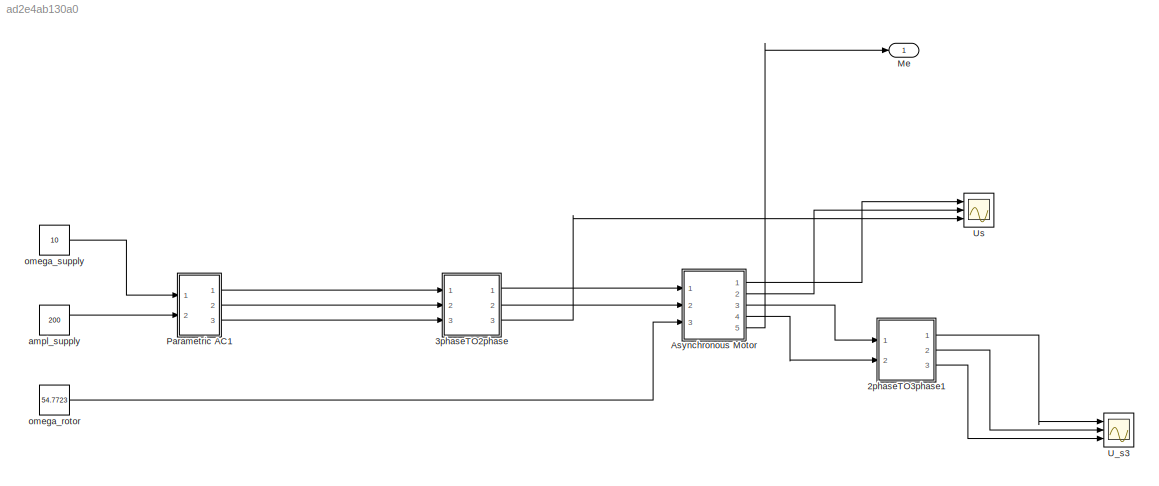
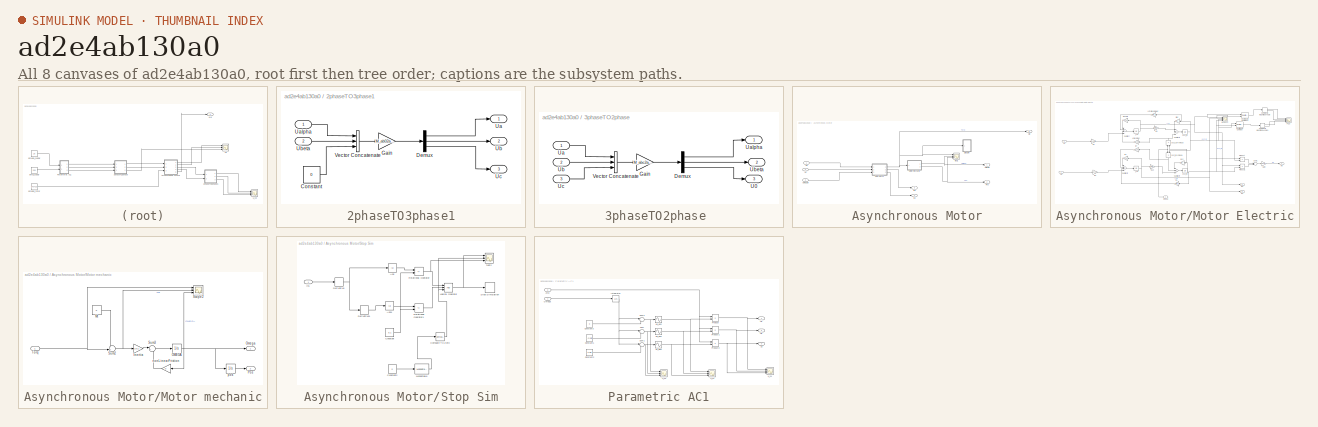
[diagram: thumbnail index - all 8 canvases of the model, root first then tree order]
MODEL slx_ad2e4ab130a0
KIND model
CONFIG AbsTol = auto
CONFIG FixedStep = 0.0005
CONFIG MaxStep = auto
CONFIG MinStep = auto
CONFIG RelTol = 1e-3
CONFIG SampleTimeConstraint = Unconstrained
CONFIG Solver = FixedStepAuto
CONFIG SolverMode = Auto
CONFIG SolverName = FixedStepAuto
CONFIG StartTime = 0.0
CONFIG StopTime = 10
BLOCK [SubSystem] 2phaseTO3phase1
  Ports = [2, 3]
  RequestExecContextInheritance = off
  Variant = off
BLOCK [Constant] 2phaseTO3phase1/Constant
  Value = 0
BLOCK [Demux] 2phaseTO3phase1/Demux
  DisplayOption = bar
  Outputs = 3
  Ports = [1, 3]
BLOCK [Gain] 2phaseTO3phase1/Gain
  Gain = M_ab02abc
  Multiplication = Matrix(K*u)
  OutDataTypeStr = Inherit: Inherit via internal rule
  ParamDataTypeStr = Inherit: Inherit via internal rule
  SaturateOnIntegerOverflow = off
BLOCK [Outport] 2phaseTO3phase1/Ua
  IconDisplay = Port number
BLOCK [Inport] 2phaseTO3phase1/Ualpha
  IconDisplay = Port number
BLOCK [Outport] 2phaseTO3phase1/Ub
  IconDisplay = Port number
  Port = 2
BLOCK [Inport] 2phaseTO3phase1/Ubeta
  IconDisplay = Port number
  Port = 2
BLOCK [Outport] 2phaseTO3phase1/Uc
  IconDisplay = Port number
  Port = 3
BLOCK [Concatenate] 2phaseTO3phase1/Vector Concatenate
  NumInputs = 3
  Ports = [3, 1]
BLOCK [SubSystem] 3phaseTO2phase 
  Ports = [3, 3]
  RequestExecContextInheritance = off
  Variant = off
BLOCK [Demux] 3phaseTO2phase /Demux
  DisplayOption = bar
  Outputs = 3
  Ports = [1, 3]
BLOCK [Gain] 3phaseTO2phase /Gain
  Gain = M_abc2ab0
  Multiplication = Matrix(K*u)
  OutDataTypeStr = Inherit: Inherit via internal rule
  ParamDataTypeStr = Inherit: Inherit via internal rule
  SaturateOnIntegerOverflow = off
BLOCK [Outport] 3phaseTO2phase /U0
  IconDisplay = Port number
  Port = 3
BLOCK [Inport] 3phaseTO2phase /Ua
  IconDisplay = Port number
BLOCK [Outport] 3phaseTO2phase /Ualpha
  IconDisplay = Port number
BLOCK [Inport] 3phaseTO2phase /Ub
  IconDisplay = Port number
  Port = 2
BLOCK [Outport] 3phaseTO2phase /Ubeta
  IconDisplay = Port number
  Port = 2
BLOCK [Inport] 3phaseTO2phase /Uc
  IconDisplay = Port number
  Port = 3
BLOCK [Concatenate] 3phaseTO2phase /Vector Concatenate
  NumInputs = 3
  Ports = [3, 1]
BLOCK [SubSystem] Asynchronous Motor
  Ports = [3, 5]
  RequestExecContextInheritance = off
  Variant = off
BLOCK [Outport] Asynchronous Motor/Isd
  IconDisplay = Port number
  Port = 3
BLOCK [Outport] Asynchronous Motor/Isq
  IconDisplay = Port number
  Port = 4
BLOCK [Outport] Asynchronous Motor/Me
  IconDisplay = Port number
  Port = 5
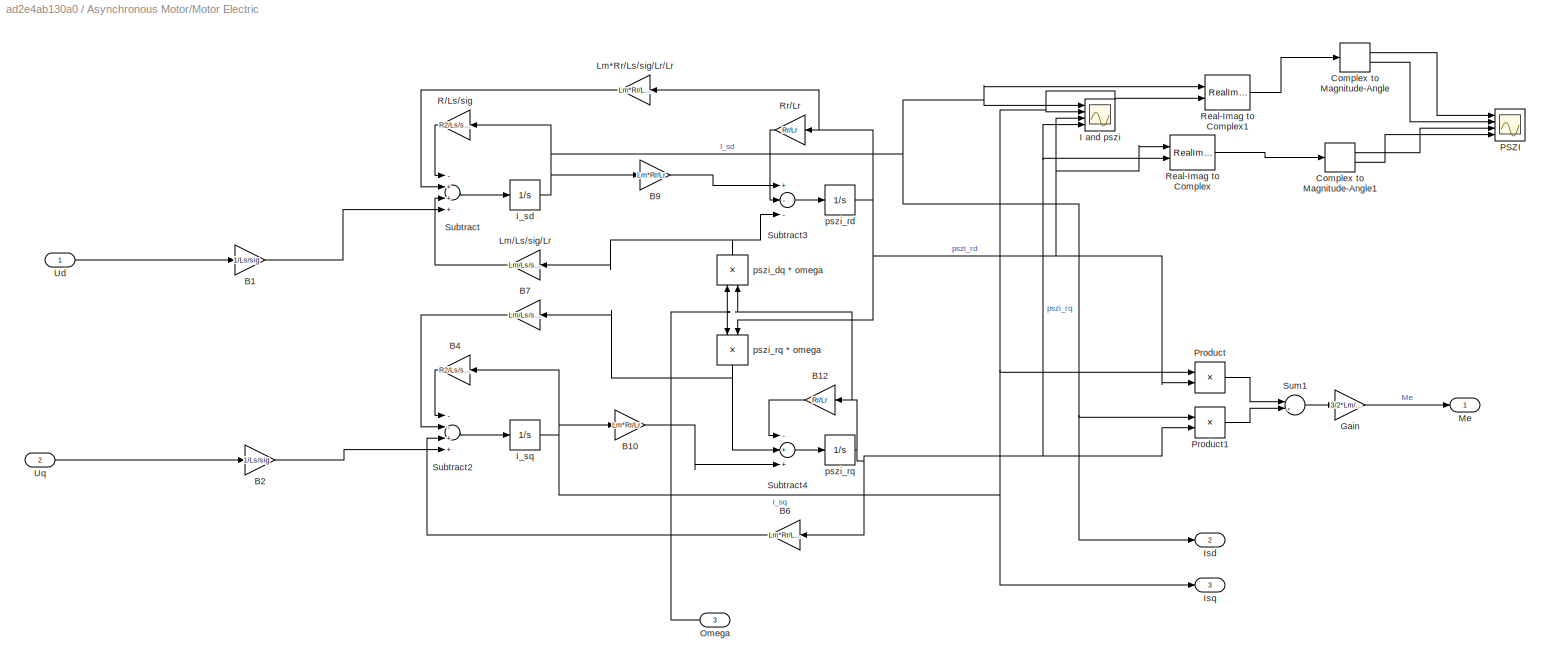
BLOCK [SubSystem] Asynchronous Motor/Motor Electric
  Ports = [3, 3]
  RequestExecContextInheritance = off
  Variant = off
BLOCK [Gain] Asynchronous Motor/Motor Electric/B1
  Gain = 1/Ls/sig
  Multiplication = Matrix(K*u)
  OutDataTypeStr = Inherit: Inherit via internal rule
  ParamDataTypeStr = Inherit: Inherit via internal rule
  SaturateOnIntegerOverflow = off
BLOCK [Gain] Asynchronous Motor/Motor Electric/B10
  Gain = Lm*Rr/Lr
  Multiplication = Matrix(K*u)
  OutDataTypeStr = Inherit: Inherit via internal rule
  ParamDataTypeStr = Inherit: Inherit via internal rule
  SaturateOnIntegerOverflow = off
BLOCK [Gain] Asynchronous Motor/Motor Electric/B12
  Gain = Rr/Lr
  Multiplication = Matrix(K*u)
  OutDataTypeStr = Inherit: Inherit via internal rule
  ParamDataTypeStr = Inherit: Inherit via internal rule
  SaturateOnIntegerOverflow = off
BLOCK [Gain] Asynchronous Motor/Motor Electric/B2
  Gain = 1/Ls/sig
  Multiplication = Matrix(K*u)
  OutDataTypeStr = Inherit: Inherit via internal rule
  ParamDataTypeStr = Inherit: Inherit via internal rule
  SaturateOnIntegerOverflow = off
BLOCK [Gain] Asynchronous Motor/Motor Electric/B4
  Gain = R2/Ls/sig
  Multiplication = Matrix(K*u)
  OutDataTypeStr = Inherit: Inherit via internal rule
  ParamDataTypeStr = Inherit: Inherit via internal rule
  SaturateOnIntegerOverflow = off
BLOCK [Gain] Asynchronous Motor/Motor Electric/B6
  Gain = Lm*Rr/Ls/sig/Lr/Lr
  Multiplication = Matrix(K*u)
  OutDataTypeStr = Inherit: Inherit via internal rule
  ParamDataTypeStr = Inherit: Inherit via internal rule
  SaturateOnIntegerOverflow = off
BLOCK [Gain] Asynchronous Motor/Motor Electric/B7
  Gain = Lm/Ls/sig/Lr
  Multiplication = Matrix(K*u)
  OutDataTypeStr = Inherit: Inherit via internal rule
  ParamDataTypeStr = Inherit: Inherit via internal rule
  SaturateOnIntegerOverflow = off
BLOCK [Gain] Asynchronous Motor/Motor Electric/B9
  Gain = Lm*Rr/Lr
  Multiplication = Matrix(K*u)
  OutDataTypeStr = Inherit: Inherit via internal rule
  ParamDataTypeStr = Inherit: Inherit via internal rule
  SaturateOnIntegerOverflow = off
BLOCK [ComplexToMagnitudeAngle] Asynchronous Motor/Motor Electric/Complex to Magnitude-Angle
  Ports = [1, 2]
BLOCK [ComplexToMagnitudeAngle] Asynchronous Motor/Motor Electric/Complex to Magnitude-Angle1
  Ports = [1, 2]
BLOCK [Gain] Asynchronous Motor/Motor Electric/Gain
  Gain = 3/2*Lm/Lr
  OutDataTypeStr = Inherit: Inherit via internal rule
  ParamDataTypeStr = Inherit: Inherit via internal rule
  SaturateOnIntegerOverflow = off
BLOCK [Scope] Asynchronous Motor/Motor Electric/I and pszi
  NumInputPorts = 4
  Ports = [4]
  ScopeSpecificationString = Simulink.scopes.TimeScopeBlockCfg('CurrentConfiguration', extmgr.ConfigurationSet(extmgr.Configuration('Core','General UI',true),extmgr.Configuration('Core','Source UI',true),extmgr.Configuration('Sources','WiredSimulink',true),extmgr.Configuration('Visuals','Time Domain',true,'SerializedDisplays',{struct('MinYLimReal','-0.35721','MaxYLimReal','0.2837','YLabelReal','','MinYLimMag','0.00000','MaxYL...<+1453ch>
BLOCK [Integrator] Asynchronous Motor/Motor Electric/I_sd
  Ports = [1, 1]
BLOCK [Integrator] Asynchronous Motor/Motor Electric/I_sq
  Ports = [1, 1]
BLOCK [Outport] Asynchronous Motor/Motor Electric/Isd
  IconDisplay = Port number
  Port = 2
BLOCK [Outport] Asynchronous Motor/Motor Electric/Isq
  IconDisplay = Port number
  Port = 3
BLOCK [Gain] Asynchronous Motor/Motor Electric/Lm*Rr//Ls//sig//Lr//Lr
  Gain = Lm*Rr/Ls/sig/Lr/Lr
  Multiplication = Matrix(K*u)
  OutDataTypeStr = Inherit: Inherit via internal rule
  ParamDataTypeStr = Inherit: Inherit via internal rule
  SaturateOnIntegerOverflow = off
BLOCK [Gain] Asynchronous Motor/Motor Electric/Lm//Ls//sig//Lr
  Gain = Lm/Ls/sig/Lr
  Multiplication = Matrix(K*u)
  OutDataTypeStr = Inherit: Inherit via internal rule
  ParamDataTypeStr = Inherit: Inherit via internal rule
  SaturateOnIntegerOverflow = off
BLOCK [Outport] Asynchronous Motor/Motor Electric/Me
  IconDisplay = Port number
BLOCK [Inport] Asynchronous Motor/Motor Electric/Omega
  IconDisplay = Port number
  Port = 3
BLOCK [Scope] Asynchronous Motor/Motor Electric/PSZI
  NumInputPorts = 4
  Ports = [4]
  ScopeSpecificationString = Simulink.scopes.TimeScopeBlockCfg('CurrentConfiguration', extmgr.ConfigurationSet(extmgr.Configuration('Core','General UI',true),extmgr.Configuration('Core','Source UI',true),extmgr.Configuration('Sources','WiredSimulink',true,'DataLoggingVariableName','ScopeData2'),extmgr.Configuration('Visuals','Time Domain',true,'SerializedDisplays',{struct('MinYLimReal','-15.09969','MaxYLimReal','104.48314','Y...<+1595ch>
BLOCK [Product] Asynchronous Motor/Motor Electric/Product
  InputSameDT = off
  OutDataTypeStr = Inherit: Inherit via internal rule
  Ports = [2, 1]
  RndMeth = Floor
  SaturateOnIntegerOverflow = off
BLOCK [Product] Asynchronous Motor/Motor Electric/Product1
  InputSameDT = off
  OutDataTypeStr = Inherit: Inherit via internal rule
  Ports = [2, 1]
  RndMeth = Floor
  SaturateOnIntegerOverflow = off
BLOCK [Gain] Asynchronous Motor/Motor Electric/R//Ls//sig
  Gain = R2/Ls/sig
  Multiplication = Matrix(K*u)
  OutDataTypeStr = Inherit: Inherit via internal rule
  ParamDataTypeStr = Inherit: Inherit via internal rule
  SaturateOnIntegerOverflow = off
BLOCK [RealImagToComplex] Asynchronous Motor/Motor Electric/Real-Imag to Complex
  Ports = [2, 1]
BLOCK [RealImagToComplex] Asynchronous Motor/Motor Electric/Real-Imag to Complex1
  Ports = [2, 1]
BLOCK [Gain] Asynchronous Motor/Motor Electric/Rr//Lr
  Gain = Rr/Lr
  Multiplication = Matrix(K*u)
  OutDataTypeStr = Inherit: Inherit via internal rule
  ParamDataTypeStr = Inherit: Inherit via internal rule
  SaturateOnIntegerOverflow = off
BLOCK [Sum] Asynchronous Motor/Motor Electric/Subtract
  InputSameDT = off
  Inputs = -+++
  OutDataTypeStr = Inherit: Inherit via internal rule
  Ports = [4, 1]
  SaturateOnIntegerOverflow = off
BLOCK [Sum] Asynchronous Motor/Motor Electric/Subtract2
  InputSameDT = off
  Inputs = --++
  OutDataTypeStr = Inherit: Inherit via internal rule
  Ports = [4, 1]
  SaturateOnIntegerOverflow = off
BLOCK [Sum] Asynchronous Motor/Motor Electric/Subtract3
  InputSameDT = off
  Inputs = +--
  OutDataTypeStr = Inherit: Inherit via internal rule
  Ports = [3, 1]
  SaturateOnIntegerOverflow = off
BLOCK [Sum] Asynchronous Motor/Motor Electric/Subtract4
  InputSameDT = off
  Inputs = -++
  OutDataTypeStr = Inherit: Inherit via internal rule
  Ports = [3, 1]
  SaturateOnIntegerOverflow = off
BLOCK [Sum] Asynchronous Motor/Motor Electric/Sum1
  IconShape = round
  InputSameDT = off
  Inputs = |+-|
  OutDataTypeStr = Inherit: Inherit via internal rule
  Ports = [2, 1]
  SaturateOnIntegerOverflow = off
BLOCK [Inport] Asynchronous Motor/Motor Electric/Ud
  IconDisplay = Port number
BLOCK [Inport] Asynchronous Motor/Motor Electric/Uq
  IconDisplay = Port number
  Port = 2
BLOCK [Product] Asynchronous Motor/Motor Electric/pszi_dq * omega
  InputSameDT = off
  OutDataTypeStr = Inherit: Inherit via internal rule
  Ports = [2, 1]
  RndMeth = Floor
  SaturateOnIntegerOverflow = off
BLOCK [Integrator] Asynchronous Motor/Motor Electric/pszi_rd
  Ports = [1, 1]
BLOCK [Integrator] Asynchronous Motor/Motor Electric/pszi_rq 
  Ports = [1, 1]
BLOCK [Product] Asynchronous Motor/Motor Electric/pszi_rq * omega
  InputSameDT = off
  OutDataTypeStr = Inherit: Inherit via internal rule
  Ports = [2, 1]
  RndMeth = Floor
  SaturateOnIntegerOverflow = off
BLOCK [SubSystem] Asynchronous Motor/Motor mechanic
  Ports = [1, 2]
  RequestExecContextInheritance = off
  Variant = off
BLOCK [Gain] Asynchronous Motor/Motor mechanic/Inertia
  Gain = 1/0.1
  OutDataTypeStr = Inherit: Inherit via internal rule
  ParamDataTypeStr = Inherit: Inherit via internal rule
  SaturateOnIntegerOverflow = off
BLOCK [Constant] Asynchronous Motor/Motor mechanic/Mt
  Value = 0
BLOCK [Integrator] Asynchronous Motor/Motor mechanic/OMEGA
  Ports = [1, 1]
BLOCK [Outport] Asynchronous Motor/Motor mechanic/Omega
  IconDisplay = Port number
BLOCK [Outport] Asynchronous Motor/Motor mechanic/Pos
  IconDisplay = Port number
  Port = 2
BLOCK [Scope] Asynchronous Motor/Motor mechanic/Scope2
  NumInputPorts = 3
  Ports = [3]
  ScopeSpecificationString = Simulink.scopes.TimeScopeBlockCfg('CurrentConfiguration', extmgr.ConfigurationSet(extmgr.Configuration('Core','General UI',true),extmgr.Configuration('Core','Source UI',true),extmgr.Configuration('Sources','WiredSimulink',true,'DataLoggingVariableName','ScopeData2'),extmgr.Configuration('Visuals','Time Domain',true,'SerializedDisplays',{struct('MinYLimReal','-303.80332','MaxYLimReal','-258.5018','...<+1513ch>
BLOCK [Sum] Asynchronous Motor/Motor mechanic/Sum2
  IconShape = round
  InputSameDT = off
  Inputs = -+|
  OutDataTypeStr = Inherit: Inherit via internal rule
  Ports = [2, 1]
  SaturateOnIntegerOverflow = off
BLOCK [Sum] Asynchronous Motor/Motor mechanic/Sum3
  IconShape = round
  InputSameDT = off
  Inputs = |+-
  OutDataTypeStr = Inherit: Inherit via internal rule
  Ports = [2, 1]
  SaturateOnIntegerOverflow = off
BLOCK [Inport] Asynchronous Motor/Motor mechanic/Torq 
  IconDisplay = Port number
BLOCK [Gain] Asynchronous Motor/Motor mechanic/nonLinearFriction
  Gain = 0
  OutDataTypeStr = Inherit: Inherit via internal rule
  ParamDataTypeStr = Inherit: Inherit via internal rule
  SaturateOnIntegerOverflow = off
BLOCK [Integrator] Asynchronous Motor/Motor mechanic/pos
  Ports = [1, 1]
  WrapState = on
BLOCK [Outport] Asynchronous Motor/Omega
  IconDisplay = Port number
BLOCK [Inport] Asynchronous Motor/OmegaIn
  IconDisplay = Port number
  Port = 3
BLOCK [Outport] Asynchronous Motor/Pos
  IconDisplay = Port number
  Port = 2
BLOCK [SubSystem] Asynchronous Motor/Stop Sim
  Ports = [1]
  RequestExecContextInheritance = off
  Variant = off
BLOCK [Abs] Asynchronous Motor/Stop Sim/Abs
  SaturateOnIntegerOverflow = off
BLOCK [Abs] Asynchronous Motor/Stop Sim/Abs1
  SaturateOnIntegerOverflow = off
BLOCK [Reference] Asynchronous Motor/Stop Sim/Compare To Zero  REF=simulink/Logic and Bit
Operations/Compare
To Zero
  Ports = [1, 1]
  SourceBlock = simulink/Logic and Bit\nOperations/Compare\nTo Zero
  SourceType = Compare To Zero
BLOCK [Constant] Asynchronous Motor/Stop Sim/Constant
  Value = 0.1
BLOCK [Constant] Asynchronous Motor/Stop Sim/Constant2
  Value = 0
BLOCK [Derivative] Asynchronous Motor/Stop Sim/Derivative
BLOCK [Derivative] Asynchronous Motor/Stop Sim/Derivative1
BLOCK [Inport] Asynchronous Motor/Stop Sim/In1
  IconDisplay = Port number
BLOCK [Logic] Asynchronous Motor/Stop Sim/Logical Operator
  AllPortsSameDT = off
  Inputs = 3
  OutDataTypeStr = boolean
  Ports = [3, 1]
BLOCK [Reference] Asynchronous Motor/Stop Sim/Monostable  REF=powerlib_meascontrol/Logic/Monostable
  Ports = [1, 1]
  SourceBlock = powerlib_meascontrol/Logic/Monostable
  SourceType = Monostable
BLOCK [RelationalOperator] Asynchronous Motor/Stop Sim/Relational Operator
  InputSameDT = off
  Operator = <=
  OutDataTypeStr = boolean
  Ports = [2, 1]
BLOCK [RelationalOperator] Asynchronous Motor/Stop Sim/Relational Operator1
  InputSameDT = off
  Operator = <=
  OutDataTypeStr = boolean
  Ports = [2, 1]
BLOCK [Stop] Asynchronous Motor/Stop Sim/Stop Simulation
BLOCK [Scope] Asynchronous Motor/Stop Sim/test2
  NumInputPorts = 3
  Ports = [3]
  ScopeSpecificationString = Simulink.scopes.TimeScopeBlockCfg('CurrentConfiguration', extmgr.ConfigurationSet(extmgr.Configuration('Core','General UI',true),extmgr.Configuration('Core','Source UI',true),extmgr.Configuration('Sources','WiredSimulink',true,'DataLoggingVariableName','ScopeData2'),extmgr.Configuration('Visuals','Time Domain',true,'SerializedDisplays',{struct('MinYLimReal','-0.125','MaxYLimReal','1.125','YLabelRe...<+2920ch>
BLOCK [Inport] Asynchronous Motor/Ud
  IconDisplay = Port number
BLOCK [Inport] Asynchronous Motor/Us
  IconDisplay = Port number
  Port = 2
BLOCK [Scope] Asynchronous Motor/test1
  NumInputPorts = 3
  Ports = [3]
  ScopeSpecificationString = Simulink.scopes.TimeScopeBlockCfg('CurrentConfiguration', extmgr.ConfigurationSet(extmgr.Configuration('Core','General UI',true),extmgr.Configuration('Core','Source UI',true),extmgr.Configuration('Sources','WiredSimulink',true,'DataLoggingVariableName','ScopeData3'),extmgr.Configuration('Visuals','Time Domain',true,'SerializedDisplays',{struct('MinYLimReal','-282.06794','MaxYLimReal','-277.96385',...<+1471ch>
BLOCK [Outport] Me
  IconDisplay = Port number
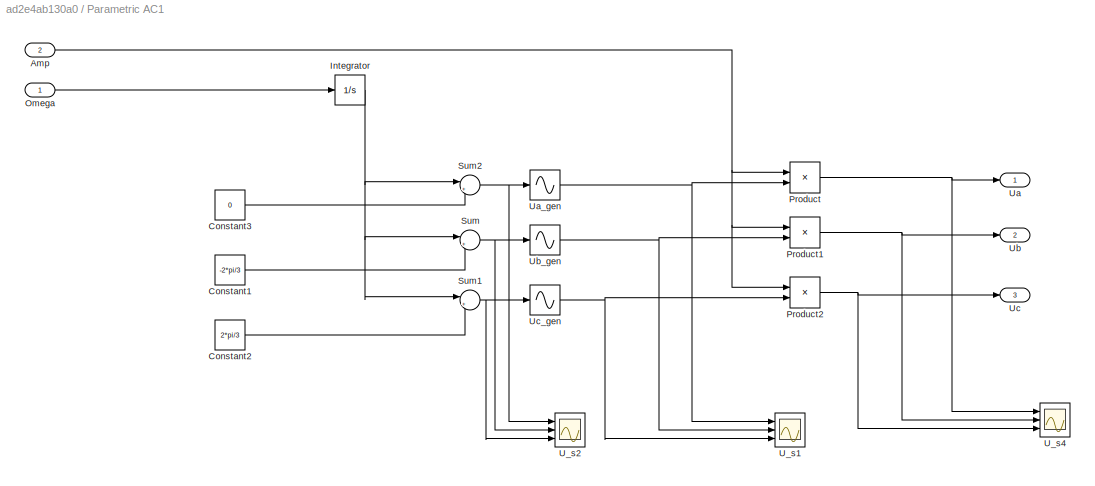
BLOCK [SubSystem] Parametric AC1
  Ports = [2, 3]
  RequestExecContextInheritance = off
  Variant = off
BLOCK [Inport] Parametric AC1/Amp
  IconDisplay = Port number
  Port = 2
BLOCK [Constant] Parametric AC1/Constant1
  Value = -2*pi/3
BLOCK [Constant] Parametric AC1/Constant2
  Value = 2*pi/3
BLOCK [Constant] Parametric AC1/Constant3
  Value = 0
BLOCK [Integrator] Parametric AC1/Integrator
  Ports = [1, 1]
  WrapState = on
BLOCK [Inport] Parametric AC1/Omega
  IconDisplay = Port number
BLOCK [Product] Parametric AC1/Product
  InputSameDT = off
  OutDataTypeStr = Inherit: Inherit via internal rule
  Ports = [2, 1]
  RndMeth = Floor
  SaturateOnIntegerOverflow = off
BLOCK [Product] Parametric AC1/Product1
  InputSameDT = off
  OutDataTypeStr = Inherit: Inherit via internal rule
  Ports = [2, 1]
  RndMeth = Floor
  SaturateOnIntegerOverflow = off
BLOCK [Product] Parametric AC1/Product2
  InputSameDT = off
  OutDataTypeStr = Inherit: Inherit via internal rule
  Ports = [2, 1]
  RndMeth = Floor
  SaturateOnIntegerOverflow = off
BLOCK [Sum] Parametric AC1/Sum
  IconShape = round
  InputSameDT = off
  Inputs = |++
  OutDataTypeStr = Inherit: Inherit via internal rule
  Ports = [2, 1]
  SaturateOnIntegerOverflow = off
BLOCK [Sum] Parametric AC1/Sum1
  IconShape = round
  InputSameDT = off
  Inputs = |++
  OutDataTypeStr = Inherit: Inherit via internal rule
  Ports = [2, 1]
  SaturateOnIntegerOverflow = off
BLOCK [Sum] Parametric AC1/Sum2
  IconShape = round
  InputSameDT = off
  Inputs = |++
  OutDataTypeStr = Inherit: Inherit via internal rule
  Ports = [2, 1]
  SaturateOnIntegerOverflow = off
BLOCK [Scope] Parametric AC1/U_s1
  NumInputPorts = 3
  Ports = [3]
  ScopeSpecificationString = Simulink.scopes.TimeScopeBlockCfg('CurrentConfiguration', extmgr.ConfigurationSet(extmgr.Configuration('Core','General UI',true),extmgr.Configuration('Core','Source UI',true),extmgr.Configuration('Sources','WiredSimulink',true,'DataLoggingVariableName','ScopeData9'),extmgr.Configuration('Visuals','Time Domain',true,'SerializedDisplays',{struct('MinYLimReal','-1.25','MaxYLimReal','1.25','YLabelReal...<+1415ch>
BLOCK [Scope] Parametric AC1/U_s2
  NumInputPorts = 3
  Ports = [3]
  ScopeSpecificationString = Simulink.scopes.TimeScopeBlockCfg('CurrentConfiguration', extmgr.ConfigurationSet(extmgr.Configuration('Core','General UI',true),extmgr.Configuration('Core','Source UI',true),extmgr.Configuration('Sources','WiredSimulink',true,'DataLoggingVariableName','ScopeData10'),extmgr.Configuration('Visuals','Time Domain',true,'SerializedDisplays',{struct('MinYLimReal','-6.54476','MaxYLimReal','6.54422','YLa...<+1427ch>
BLOCK [Scope] Parametric AC1/U_s4
  NumInputPorts = 3
  Ports = [3]
  ScopeSpecificationString = Simulink.scopes.TimeScopeBlockCfg('CurrentConfiguration', extmgr.ConfigurationSet(extmgr.Configuration('Core','General UI',true),extmgr.Configuration('Core','Source UI',true),extmgr.Configuration('Sources','WiredSimulink',true,'DataLoggingVariableName','ScopeData8'),extmgr.Configuration('Visuals','Time Domain',true,'SerializedDisplays',{struct('MinYLimReal','-49999.99999','MaxYLimReal','49999.9999...<+1493ch>
BLOCK [Outport] Parametric AC1/Ua
  IconDisplay = Port number
BLOCK [Sin] Parametric AC1/Ua_gen
  Ports = [1, 1]
  SampleTime = 0
  TimeSource = Use external signal
BLOCK [Outport] Parametric AC1/Ub
  IconDisplay = Port number
  Port = 2
BLOCK [Sin] Parametric AC1/Ub_gen
  Ports = [1, 1]
  SampleTime = 0
  TimeSource = Use external signal
BLOCK [Outport] Parametric AC1/Uc
  IconDisplay = Port number
  Port = 3
BLOCK [Sin] Parametric AC1/Uc_gen
  Ports = [1, 1]
  SampleTime = 0
  TimeSource = Use external signal
BLOCK [Scope] U_s3
  NumInputPorts = 3
  Ports = [3]
  ScopeSpecificationString = Simulink.scopes.TimeScopeBlockCfg('CurrentConfiguration', extmgr.ConfigurationSet(extmgr.Configuration('Core','General UI',true),extmgr.Configuration('Core','Source UI',true),extmgr.Configuration('Sources','WiredSimulink',true,'DataLoggingVariableName','ScopeData7'),extmgr.Configuration('Visuals','Time Domain',true,'SerializedDisplays',{struct('MinYLimReal','-27.47781','MaxYLimReal','28.93227','YL...<+1498ch>
BLOCK [Scope] Us
  NumInputPorts = 3
  Ports = [3]
  ScopeSpecificationString = Simulink.scopes.TimeScopeBlockCfg('CurrentConfiguration', extmgr.ConfigurationSet(extmgr.Configuration('Core','General UI',true),extmgr.Configuration('Core','Source UI',true),extmgr.Configuration('Sources','WiredSimulink',true,'DataLoggingVariableName','ScopeData5'),extmgr.Configuration('Visuals','Time Domain',true,'SerializedDisplays',{struct('MinYLimReal','-35.68953','MaxYLimReal','300.2618','YL...<+1511ch>
BLOCK [Constant] ampl_supply
  Value = 200
BLOCK [Constant] omega_rotor
  Value = 54.7723
BLOCK [Constant] omega_supply
  Value = 10
LINE 2phaseTO3phase1/Constant:1 -> 2phaseTO3phase1/Vector Concatenate:3
LINE 2phaseTO3phase1/Demux:1 -> 2phaseTO3phase1/Ua:1
LINE 2phaseTO3phase1/Demux:2 -> 2phaseTO3phase1/Ub:1
LINE 2phaseTO3phase1/Demux:3 -> 2phaseTO3phase1/Uc:1
LINE 2phaseTO3phase1/Gain:1 -> 2phaseTO3phase1/Demux:1
LINE 2phaseTO3phase1/Ualpha:1 -> 2phaseTO3phase1/Vector Concatenate:1
LINE 2phaseTO3phase1/Ubeta:1 -> 2phaseTO3phase1/Vector Concatenate:2
LINE 2phaseTO3phase1/Vector Concatenate:1 -> 2phaseTO3phase1/Gain:1
LINE 2phaseTO3phase1:1 -> U_s3:1
LINE 2phaseTO3phase1:2 -> U_s3:2
LINE 2phaseTO3phase1:3 -> U_s3:3
LINE 3phaseTO2phase /Demux:1 -> 3phaseTO2phase /Ualpha:1
LINE 3phaseTO2phase /Demux:2 -> 3phaseTO2phase /Ubeta:1
LINE 3phaseTO2phase /Demux:3 -> 3phaseTO2phase /U0:1
LINE 3phaseTO2phase /Gain:1 -> 3phaseTO2phase /Demux:1
LINE 3phaseTO2phase /Ua:1 -> 3phaseTO2phase /Vector Concatenate:1
LINE 3phaseTO2phase /Ub:1 -> 3phaseTO2phase /Vector Concatenate:2
LINE 3phaseTO2phase /Uc:1 -> 3phaseTO2phase /Vector Concatenate:3
LINE 3phaseTO2phase /Vector Concatenate:1 -> 3phaseTO2phase /Gain:1
LINE 3phaseTO2phase :1 -> Asynchronous Motor:1
LINE 3phaseTO2phase :2 -> Asynchronous Motor:2
LINE 3phaseTO2phase :3 -> Us:3
LINE Asynchronous Motor/Motor Electric/B10:1 -> Asynchronous Motor/Motor Electric/Subtract4:3
LINE Asynchronous Motor/Motor Electric/B12:1 -> Asynchronous Motor/Motor Electric/Subtract4:1
LINE Asynchronous Motor/Motor Electric/B1:1 -> Asynchronous Motor/Motor Electric/Subtract:4
LINE Asynchronous Motor/Motor Electric/B2:1 -> Asynchronous Motor/Motor Electric/Subtract2:4
LINE Asynchronous Motor/Motor Electric/B4:1 -> Asynchronous Motor/Motor Electric/Subtract2:1
LINE Asynchronous Motor/Motor Electric/B6:1 -> Asynchronous Motor/Motor Electric/Subtract2:3
LINE Asynchronous Motor/Motor Electric/B7:1 -> Asynchronous Motor/Motor Electric/Subtract2:2
LINE Asynchronous Motor/Motor Electric/B9:1 -> Asynchronous Motor/Motor Electric/Subtract3:1
LINE Asynchronous Motor/Motor Electric/Complex to Magnitude-Angle1:1 -> Asynchronous Motor/Motor Electric/PSZI:3
LINE Asynchronous Motor/Motor Electric/Complex to Magnitude-Angle1:2 -> Asynchronous Motor/Motor Electric/PSZI:4
LINE Asynchronous Motor/Motor Electric/Complex to Magnitude-Angle:1 -> Asynchronous Motor/Motor Electric/PSZI:1
LINE Asynchronous Motor/Motor Electric/Complex to Magnitude-Angle:2 -> Asynchronous Motor/Motor Electric/PSZI:2
LINE Asynchronous Motor/Motor Electric/Gain:1 -> Asynchronous Motor/Motor Electric/Me:1
NET Asynchronous Motor/Motor Electric/I_sd:1 -> Asynchronous Motor/Motor Electric/B9:1, Asynchronous Motor/Motor Electric/I and pszi:1, Asynchronous Motor/Motor Electric/Isd:1, Asynchronous Motor/Motor Electric/Product1:1, Asynchronous Motor/Motor Electric/R//Ls//sig:1, Asynchronous Motor/Motor Electric/Real-Imag to Complex1:1
NET Asynchronous Motor/Motor Electric/I_sq:1 -> Asynchronous Motor/Motor Electric/B10:1, Asynchronous Motor/Motor Electric/B4:1, Asynchronous Motor/Motor Electric/I and pszi:2, Asynchronous Motor/Motor Electric/Isq:1, Asynchronous Motor/Motor Electric/Product:1, Asynchronous Motor/Motor Electric/Real-Imag to Complex1:2
LINE Asynchronous Motor/Motor Electric/Lm*Rr//Ls//sig//Lr//Lr:1 -> Asynchronous Motor/Motor Electric/Subtract:2
LINE Asynchronous Motor/Motor Electric/Lm//Ls//sig//Lr:1 -> Asynchronous Motor/Motor Electric/Subtract:3
NET Asynchronous Motor/Motor Electric/Omega:1 -> Asynchronous Motor/Motor Electric/pszi_dq * omega:1, Asynchronous Motor/Motor Electric/pszi_rq * omega:1
LINE Asynchronous Motor/Motor Electric/Product1:1 -> Asynchronous Motor/Motor Electric/Sum1:2
LINE Asynchronous Motor/Motor Electric/Product:1 -> Asynchronous Motor/Motor Electric/Sum1:1
LINE Asynchronous Motor/Motor Electric/R//Ls//sig:1 -> Asynchronous Motor/Motor Electric/Subtract:1
LINE Asynchronous Motor/Motor Electric/Real-Imag to Complex1:1 -> Asynchronous Motor/Motor Electric/Complex to Magnitude-Angle:1
LINE Asynchronous Motor/Motor Electric/Real-Imag to Complex:1 -> Asynchronous Motor/Motor Electric/Complex to Magnitude-Angle1:1
LINE Asynchronous Motor/Motor Electric/Rr//Lr:1 -> Asynchronous Motor/Motor Electric/Subtract3:2
LINE Asynchronous Motor/Motor Electric/Subtract2:1 -> Asynchronous Motor/Motor Electric/I_sq:1
LINE Asynchronous Motor/Motor Electric/Subtract3:1 -> Asynchronous Motor/Motor Electric/pszi_rd:1
LINE Asynchronous Motor/Motor Electric/Subtract4:1 -> Asynchronous Motor/Motor Electric/pszi_rq :1
LINE Asynchronous Motor/Motor Electric/Subtract:1 -> Asynchronous Motor/Motor Electric/I_sd:1
LINE Asynchronous Motor/Motor Electric/Sum1:1 -> Asynchronous Motor/Motor Electric/Gain:1
LINE Asynchronous Motor/Motor Electric/Ud:1 -> Asynchronous Motor/Motor Electric/B1:1
LINE Asynchronous Motor/Motor Electric/Uq:1 -> Asynchronous Motor/Motor Electric/B2:1
NET Asynchronous Motor/Motor Electric/pszi_dq * omega:1 -> Asynchronous Motor/Motor Electric/Lm//Ls//sig//Lr:1, Asynchronous Motor/Motor Electric/Subtract3:3
NET Asynchronous Motor/Motor Electric/pszi_rd:1 -> Asynchronous Motor/Motor Electric/I and pszi:3, Asynchronous Motor/Motor Electric/Lm*Rr//Ls//sig//Lr//Lr:1, Asynchronous Motor/Motor Electric/Product:2, Asynchronous Motor/Motor Electric/Real-Imag to Complex:1, Asynchronous Motor/Motor Electric/Rr//Lr:1, Asynchronous Motor/Motor Electric/pszi_rq * omega:2
NET Asynchronous Motor/Motor Electric/pszi_rq * omega:1 -> Asynchronous Motor/Motor Electric/B7:1, Asynchronous Motor/Motor Electric/Subtract4:2
NET Asynchronous Motor/Motor Electric/pszi_rq :1 -> Asynchronous Motor/Motor Electric/B12:1, Asynchronous Motor/Motor Electric/B6:1, Asynchronous Motor/Motor Electric/I and pszi:4, Asynchronous Motor/Motor Electric/Product1:2, Asynchronous Motor/Motor Electric/Real-Imag to Complex:2, Asynchronous Motor/Motor Electric/pszi_dq * omega:2
NET Asynchronous Motor/Motor Electric:1 -> Asynchronous Motor/Me:1, Asynchronous Motor/Motor mechanic:1, Asynchronous Motor/Stop Sim:1, Asynchronous Motor/test1:1
LINE Asynchronous Motor/Motor Electric:2 -> Asynchronous Motor/Isd:1
LINE Asynchronous Motor/Motor Electric:3 -> Asynchronous Motor/Isq:1
LINE Asynchronous Motor/Motor mechanic/Inertia:1 -> Asynchronous Motor/Motor mechanic/Sum3:1
LINE Asynchronous Motor/Motor mechanic/Mt:1 -> Asynchronous Motor/Motor mechanic/Sum2:1
NET Asynchronous Motor/Motor mechanic/OMEGA:1 -> Asynchronous Motor/Motor mechanic/Omega:1, Asynchronous Motor/Motor mechanic/Scope2:3, Asynchronous Motor/Motor mechanic/nonLinearFriction:1, Asynchronous Motor/Motor mechanic/pos:1
NET Asynchronous Motor/Motor mechanic/Sum2:1 -> Asynchronous Motor/Motor mechanic/Inertia:1, Asynchronous Motor/Motor mechanic/Scope2:2
LINE Asynchronous Motor/Motor mechanic/Sum3:1 -> Asynchronous Motor/Motor mechanic/OMEGA:1
NET Asynchronous Motor/Motor mechanic/Torq :1 -> Asynchronous Motor/Motor mechanic/Scope2:1, Asynchronous Motor/Motor mechanic/Sum2:2
LINE Asynchronous Motor/Motor mechanic/nonLinearFriction:1 -> Asynchronous Motor/Motor mechanic/Sum3:2
LINE Asynchronous Motor/Motor mechanic/pos:1 -> Asynchronous Motor/Motor mechanic/Pos:1
NET Asynchronous Motor/Motor mechanic:1 -> Asynchronous Motor/Omega:1, Asynchronous Motor/test1:2
NET Asynchronous Motor/Motor mechanic:2 -> Asynchronous Motor/Pos:1, Asynchronous Motor/test1:3
LINE Asynchronous Motor/OmegaIn:1 -> Asynchronous Motor/Motor Electric:3
LINE Asynchronous Motor/Stop Sim/Abs1:1 -> Asynchronous Motor/Stop Sim/Relational Operator1:1
LINE Asynchronous Motor/Stop Sim/Abs:1 -> Asynchronous Motor/Stop Sim/Relational Operator:1
NET Asynchronous Motor/Stop Sim/Compare To Zero:1 -> Asynchronous Motor/Stop Sim/Logical Operator:3, Asynchronous Motor/Stop Sim/test2:2
LINE Asynchronous Motor/Stop Sim/Constant2:1 -> Asynchronous Motor/Stop Sim/Monostable:1
NET Asynchronous Motor/Stop Sim/Constant:1 -> Asynchronous Motor/Stop Sim/Relational Operator1:2, Asynchronous Motor/Stop Sim/Relational Operator:2
LINE Asynchronous Motor/Stop Sim/Derivative1:1 -> Asynchronous Motor/Stop Sim/Abs1:1
NET Asynchronous Motor/Stop Sim/Derivative:1 -> Asynchronous Motor/Stop Sim/Abs:1, Asynchronous Motor/Stop Sim/Derivative1:1
LINE Asynchronous Motor/Stop Sim/In1:1 -> Asynchronous Motor/Stop Sim/Derivative:1
NET Asynchronous Motor/Stop Sim/Logical Operator:1 -> Asynchronous Motor/Stop Sim/Stop Simulation:1, Asynchronous Motor/Stop Sim/test2:1
LINE Asynchronous Motor/Stop Sim/Monostable:1 -> Asynchronous Motor/Stop Sim/Compare To Zero:1
LINE Asynchronous Motor/Stop Sim/Relational Operator1:1 -> Asynchronous Motor/Stop Sim/Logical Operator:2
NET Asynchronous Motor/Stop Sim/Relational Operator:1 -> Asynchronous Motor/Stop Sim/Logical Operator:1, Asynchronous Motor/Stop Sim/test2:3
LINE Asynchronous Motor/Ud:1 -> Asynchronous Motor/Motor Electric:1
LINE Asynchronous Motor/Us:1 -> Asynchronous Motor/Motor Electric:2
LINE Asynchronous Motor:1 -> Us:1
LINE Asynchronous Motor:2 -> Us:2
LINE Asynchronous Motor:3 -> 2phaseTO3phase1:1
LINE Asynchronous Motor:4 -> 2phaseTO3phase1:2
LINE Asynchronous Motor:5 -> Me:1
NET Parametric AC1/Amp:1 -> Parametric AC1/Product1:1, Parametric AC1/Product2:1, Parametric AC1/Product:1
LINE Parametric AC1/Constant1:1 -> Parametric AC1/Sum:2
LINE Parametric AC1/Constant2:1 -> Parametric AC1/Sum1:2
LINE Parametric AC1/Constant3:1 -> Parametric AC1/Sum2:2
NET Parametric AC1/Integrator:1 -> Parametric AC1/Sum1:1, Parametric AC1/Sum2:1, Parametric AC1/Sum:1
LINE Parametric AC1/Omega:1 -> Parametric AC1/Integrator:1
NET Parametric AC1/Product1:1 -> Parametric AC1/U_s4:2, Parametric AC1/Ub:1
NET Parametric AC1/Product2:1 -> Parametric AC1/U_s4:3, Parametric AC1/Uc:1
NET Parametric AC1/Product:1 -> Parametric AC1/U_s4:1, Parametric AC1/Ua:1
NET Parametric AC1/Sum1:1 -> Parametric AC1/U_s2:3, Parametric AC1/Uc_gen:1
NET Parametric AC1/Sum2:1 -> Parametric AC1/U_s2:1, Parametric AC1/Ua_gen:1
NET Parametric AC1/Sum:1 -> Parametric AC1/U_s2:2, Parametric AC1/Ub_gen:1
NET Parametric AC1/Ua_gen:1 -> Parametric AC1/Product:2, Parametric AC1/U_s1:1
NET Parametric AC1/Ub_gen:1 -> Parametric AC1/Product1:2, Parametric AC1/U_s1:2
NET Parametric AC1/Uc_gen:1 -> Parametric AC1/Product2:2, Parametric AC1/U_s1:3
LINE Parametric AC1:1 -> 3phaseTO2phase :1
LINE Parametric AC1:2 -> 3phaseTO2phase :2
LINE Parametric AC1:3 -> 3phaseTO2phase :3
LINE ampl_supply:1 -> Parametric AC1:2
LINE omega_rotor:1 -> Asynchronous Motor:3
LINE omega_supply:1 -> Parametric AC1:1
note: NET lines group one-source signal fan-out (src -> all destinations, sorted); 1:1 wires keep LINE
